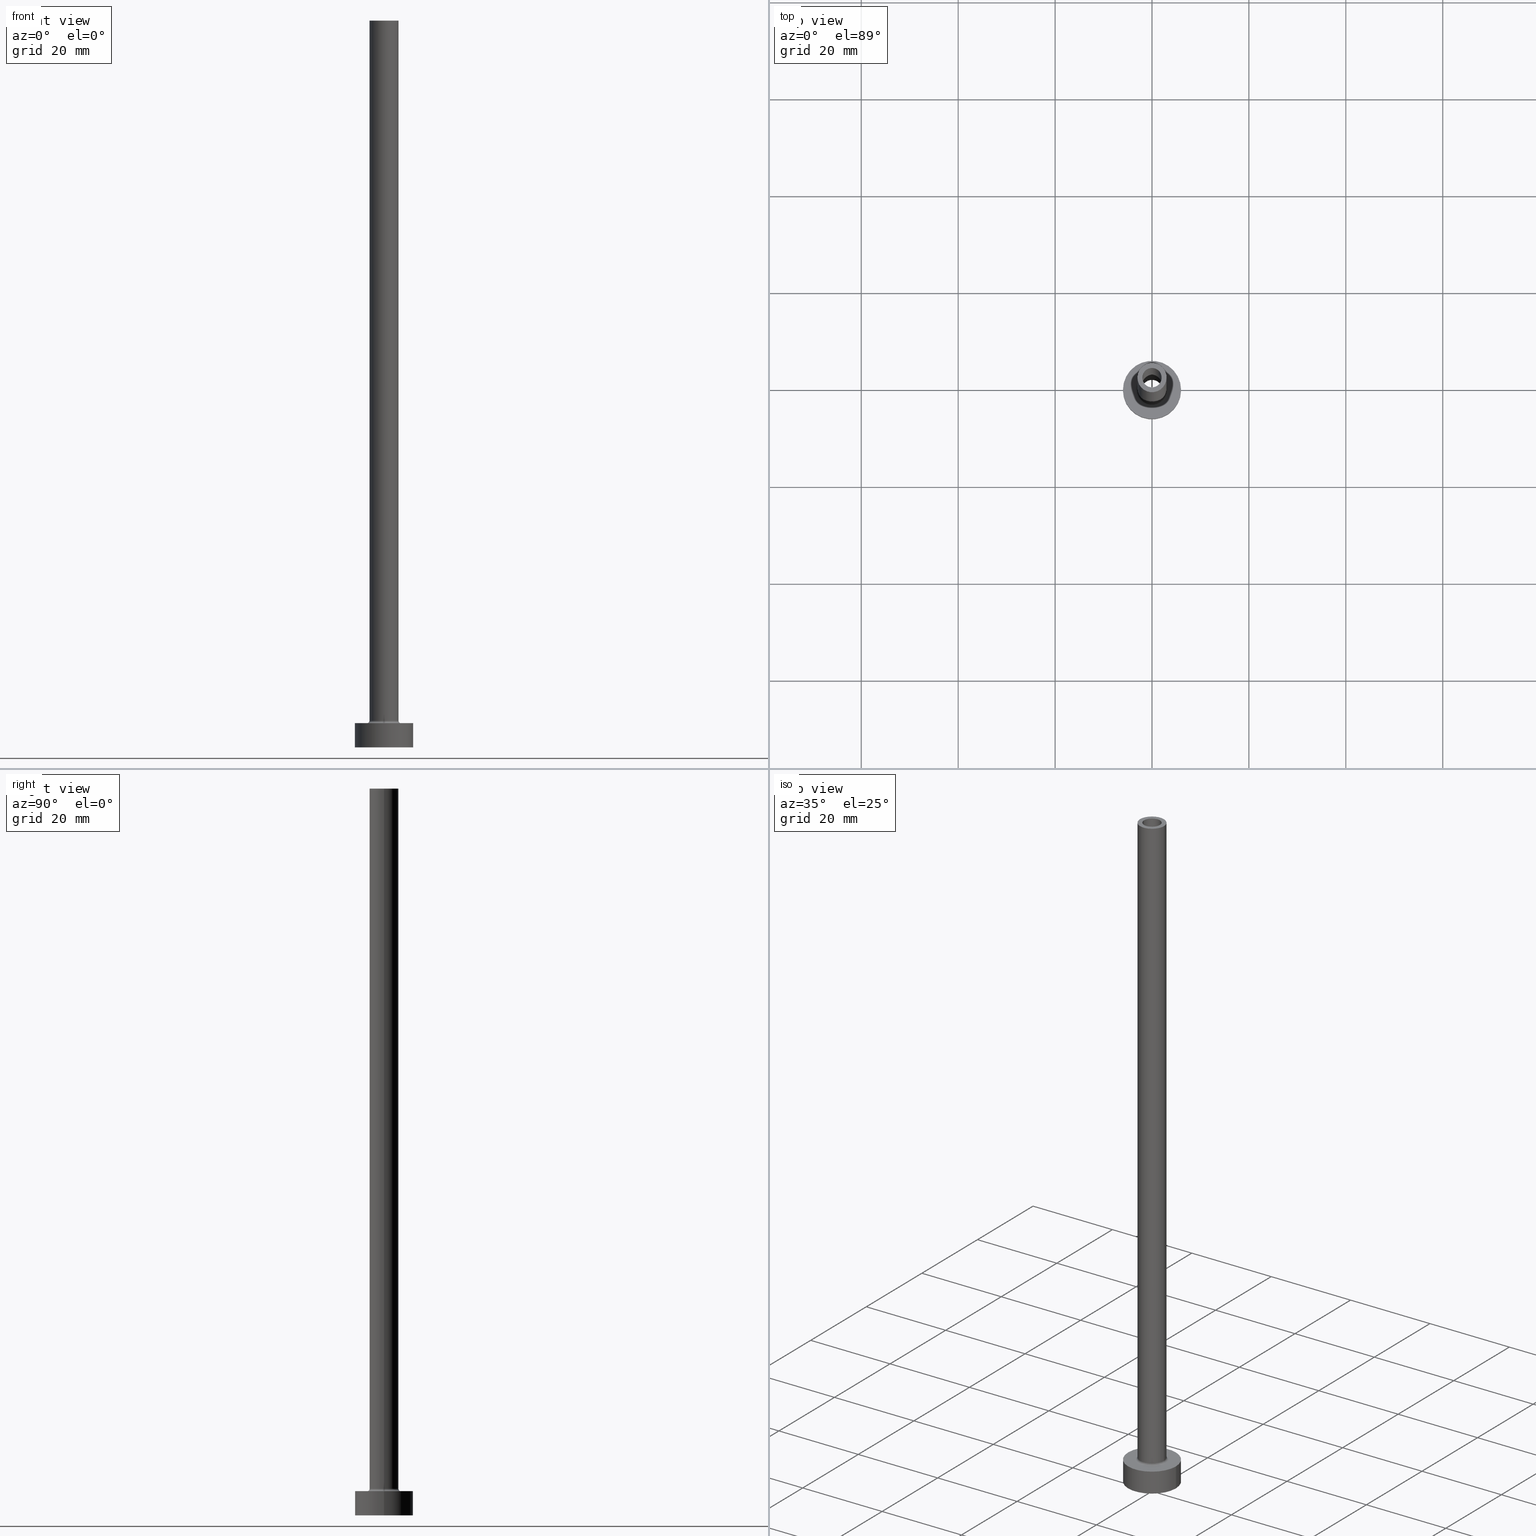
[diagram: canonical four-view strip — front | top / right | iso, engineering-drawing reading convention]
A machine part, canonical four-view strip (front | top / right | iso — engineering-drawing reading convention). The complete STEP part file that produces these views, byte-faithful:
ISO-10303-21;
HEADER;
FILE_DESCRIPTION (( 'STEP AP203' ),
    '1' );
FILE_NAME ('9be3.STEP',
    '2023-02-13T17:46:18',
    ( '' ),
    ( '' ),
    'SwSTEP 2.0',
    'SolidWorks 2019',
    '' );
FILE_SCHEMA (( 'CONFIG_CONTROL_DESIGN' ));
ENDSEC;

DATA;
#1 = COORDINATED_UNIVERSAL_TIME_OFFSET ( 1, 0, .AHEAD. ) ;
#2 = AXIS2_PLACEMENT_3D ( 'NONE', #213, #331, #76 ) ;
#3 = DIRECTION ( 'NONE',  ( 1.224646799147353207E-16, 1.000000000000000000, -0.000000000000000000 ) ) ;
#4 = FACE_OUTER_BOUND ( 'NONE', #336, .T. ) ;
#5 = ADVANCED_BREP_SHAPE_REPRESENTATION ( '9be3', ( #211, #359 ), #82 ) ;
#6 = PERSON_AND_ORGANIZATION_ROLE ( 'design_supplier' ) ;
#7 = ORGANIZATION ( 'NEUR�EN�', 'NEUR�EN�', '' ) ;
#8 = VECTOR ( 'NONE', #300, 1000.000000000000000 ) ;
#9 = DIRECTION ( 'NONE',  ( 0.000000000000000000, 0.000000000000000000, 1.000000000000000000 ) ) ;
#10 = PERSON_AND_ORGANIZATION ( #111, #7 ) ;
#11 = CARTESIAN_POINT ( 'NONE',  ( 0.000000000000000000, 0.000000000000000000, 150.0000000000000000 ) ) ;
#12 = CARTESIAN_POINT ( 'NONE',  ( 0.000000000000000000, 0.000000000000000000, 5.000000000000000000 ) ) ;
#13 = DIRECTION ( 'NONE',  ( 1.000000000000000000, 0.000000000000000000, -0.000000000000000000 ) ) ;
#14 = CALENDAR_DATE ( 2023, 13, 2 ) ;
#15 = CARTESIAN_POINT ( 'NONE',  ( 0.000000000000000000, 0.000000000000000000, 150.0000000000000000 ) ) ;
#16 = DIRECTION ( 'NONE',  ( 1.000000000000000000, 0.000000000000000000, 0.000000000000000000 ) ) ;
#17 = ORIENTED_EDGE ( 'NONE', *, *, #19, .T. ) ;
#18 = CARTESIAN_POINT ( 'NONE',  ( -6.000000000000000888, 0.000000000000000000, 5.000000000000000000 ) ) ;
#19 = EDGE_CURVE ( 'NONE', #90, #409, #284, .T. ) ;
#20 = ORIENTED_EDGE ( 'NONE', *, *, #281, .F. ) ;
#21 = CARTESIAN_POINT ( 'NONE',  ( -2.149999999999999911, 0.000000000000000000, 105.0000000000000000 ) ) ;
#22 = VECTOR ( 'NONE', #170, 1000.000000000000000 ) ;
#23 = AXIS2_PLACEMENT_3D ( 'NONE', #424, #459, #227 ) ;
#24 = ORIENTED_EDGE ( 'NONE', *, *, #394, .F. ) ;
#25 = ORIENTED_EDGE ( 'NONE', *, *, #188, .T. ) ;
#26 = EDGE_CURVE ( 'NONE', #354, #346, #42, .T. ) ;
#27 = DIRECTION ( 'NONE',  ( 0.000000000000000000, 0.000000000000000000, 1.000000000000000000 ) ) ;
#28 = ORIENTED_EDGE ( 'NONE', *, *, #353, .F. ) ;
#29 = CARTESIAN_POINT ( 'NONE',  ( 0.000000000000000000, 0.000000000000000000, 150.0000000000000000 ) ) ;
#30 = CIRCLE ( 'NONE', #262, 2.000000000000000000 ) ;
#31 =( NAMED_UNIT ( * ) PLANE_ANGLE_UNIT ( ) SI_UNIT ( $, .RADIAN. ) );
#32 = DIRECTION ( 'NONE',  ( 0.000000000000000000, 0.000000000000000000, -1.000000000000000000 ) ) ;
#33 = DIRECTION ( 'NONE',  ( 1.000000000000000000, 0.000000000000000000, 0.000000000000000000 ) ) ;
#34 = CALENDAR_DATE ( 2023, 13, 2 ) ;
#35 =( LENGTH_UNIT ( ) NAMED_UNIT ( * ) SI_UNIT ( .MILLI., .METRE. ) );
#36 = AXIS2_PLACEMENT_3D ( 'NONE', #393, #258, #327 ) ;
#37 = CARTESIAN_POINT ( 'NONE',  ( -3.000000000000000444, 0.000000000000000000, 5.500000000000005329 ) ) ;
#38 = UNCERTAINTY_MEASURE_WITH_UNIT (LENGTH_MEASURE( 1.000000000000000082E-05 ), #35, 'distance_accuracy_value', 'NONE');
#39 = EDGE_CURVE ( 'NONE', #361, #411, #347, .T. ) ;
#40 = DIRECTION ( 'NONE',  ( 0.000000000000000000, 0.000000000000000000, -1.000000000000000000 ) ) ;
#41 = LINE ( 'NONE', #289, #59 ) ;
#42 = CIRCLE ( 'NONE', #112, 6.000000000000000888 ) ;
#43 = CIRCLE ( 'NONE', #23, 3.000000000000000444 ) ;
#44 = PRODUCT_RELATED_PRODUCT_CATEGORY ( 'detail', '', ( #351 ) ) ;
#45 = CYLINDRICAL_SURFACE ( 'NONE', #158, 3.000000000000000444 ) ;
#46 = CALENDAR_DATE ( 2023, 13, 2 ) ;
#47 = CARTESIAN_POINT ( 'NONE',  ( -3.500000000000000444, 4.286263797015737088E-16, 5.000000000000002665 ) ) ;
#48 = EDGE_CURVE ( 'NONE', #411, #361, #137, .T. ) ;
#49 = CIRCLE ( 'NONE', #83, 2.149999999999999911 ) ;
#50 = EDGE_LOOP ( 'NONE', ( #334, #86 ) ) ;
#51 = FACE_BOUND ( 'NONE', #233, .T. ) ;
#52 = ORIENTED_EDGE ( 'NONE', *, *, #68, .T. ) ;
#53 = CARTESIAN_POINT ( 'NONE',  ( -6.000000000000000888, 0.000000000000000000, 0.000000000000000000 ) ) ;
#54 = CARTESIAN_POINT ( 'NONE',  ( 0.000000000000000000, 0.000000000000000000, 111.0811183182043180 ) ) ;
#55 = ORIENTED_EDGE ( 'NONE', *, *, #26, .F. ) ;
#56 = DIRECTION ( 'NONE',  ( 0.000000000000000000, 0.000000000000000000, 1.000000000000000000 ) ) ;
#57 = VERTEX_POINT ( 'NONE', #37 ) ;
#58 = CC_DESIGN_SECURITY_CLASSIFICATION ( #389, ( #163 ) ) ;
#59 = VECTOR ( 'NONE', #255, 1000.000000000000000 ) ;
#60 = CARTESIAN_POINT ( 'NONE',  ( 6.000000000000000888, 7.347880794884120722E-16, 0.000000000000000000 ) ) ;
#61 = DIRECTION ( 'NONE',  ( 0.000000000000000000, 0.000000000000000000, 1.000000000000000000 ) ) ;
#62 = DIRECTION ( 'NONE',  ( 0.000000000000000000, 0.000000000000000000, 1.000000000000000000 ) ) ;
#63 = CYLINDRICAL_SURFACE ( 'NONE', #400, 2.149999999999999911 ) ;
#64 = LINE ( 'NONE', #318, #169 ) ;
#65 = PLANE ( 'NONE',  #278 ) ;
#66 = APPROVAL_PERSON_ORGANIZATION ( #273, #116, #316 ) ;
#67 = AXIS2_PLACEMENT_3D ( 'NONE', #70, #134, #418 ) ;
#68 = EDGE_CURVE ( 'NONE', #57, #315, #375, .T. ) ;
#69 = DIRECTION ( 'NONE',  ( -0.000000000000000000, -0.000000000000000000, -1.000000000000000000 ) ) ;
#70 = CARTESIAN_POINT ( 'NONE',  ( 0.000000000000000000, 0.000000000000000000, 150.0000000000000000 ) ) ;
#71 = CYLINDRICAL_SURFACE ( 'NONE', #406, 6.000000000000000888 ) ;
#72 = DATE_AND_TIME ( #14, #447 ) ;
#73 = EDGE_CURVE ( 'NONE', #294, #131, #30, .T. ) ;
#74 = ORIENTED_EDGE ( 'NONE', *, *, #39, .T. ) ;
#75 = APPROVAL_DATE_TIME ( #293, #269 ) ;
#76 = DIRECTION ( 'NONE',  ( -1.000000000000000000, 0.000000000000000000, 0.000000000000000000 ) ) ;
#77 = PERSON_AND_ORGANIZATION_ROLE ( 'creator' ) ;
#78 = EDGE_LOOP ( 'NONE', ( #454, #357 ) ) ;
#79 = CARTESIAN_POINT ( 'NONE',  ( 0.000000000000000000, 0.000000000000000000, 5.000000000000000000 ) ) ;
#80 = DIRECTION ( 'NONE',  ( 0.000000000000000000, 0.000000000000000000, 1.000000000000000000 ) ) ;
#81 = DIRECTION ( 'NONE',  ( 1.000000000000000000, 0.000000000000000000, 0.000000000000000000 ) ) ;
#82 =( GEOMETRIC_REPRESENTATION_CONTEXT ( 3 ) GLOBAL_UNCERTAINTY_ASSIGNED_CONTEXT ( ( #38 ) ) GLOBAL_UNIT_ASSIGNED_CONTEXT ( ( #35, #31, #172 ) ) REPRESENTATION_CONTEXT ( 'NONE', 'WORKASPACE' ) );
#83 = AXIS2_PLACEMENT_3D ( 'NONE', #217, #27, #115 ) ;
#84 = TOROIDAL_SURFACE ( 'NONE', #383, 3.500000000000000444, 0.5000000000000000000 ) ;
#85 = ORIENTED_EDGE ( 'NONE', *, *, #88, .T. ) ;
#86 = ORIENTED_EDGE ( 'NONE', *, *, #326, .T. ) ;
#87 = CARTESIAN_POINT ( 'NONE',  ( -3.000000000000000444, 0.000000000000000000, 150.0000000000000000 ) ) ;
#88 = EDGE_CURVE ( 'NONE', #157, #361, #102, .T. ) ;
#89 = CARTESIAN_POINT ( 'NONE',  ( -2.149999999999999911, 0.000000000000000000, 111.0811183182043180 ) ) ;
#90 = VERTEX_POINT ( 'NONE', #53 ) ;
#91 = CC_DESIGN_PERSON_AND_ORGANIZATION_ASSIGNMENT ( #441, #77, ( #163 ) ) ;
#92 = DIRECTION ( 'NONE',  ( 1.000000000000000000, 0.000000000000000000, 0.000000000000000000 ) ) ;
#93 = AXIS2_PLACEMENT_3D ( 'NONE', #249, #80, #365 ) ;
#94 = VERTEX_POINT ( 'NONE', #372 ) ;
#95 = DIRECTION ( 'NONE',  ( 0.000000000000000000, -1.000000000000000000, 0.000000000000000000 ) ) ;
#96 = EDGE_LOOP ( 'NONE', ( #198, #194 ) ) ;
#97 = DIRECTION ( 'NONE',  ( -0.000000000000000000, -0.000000000000000000, -1.000000000000000000 ) ) ;
#98 = DIRECTION ( 'NONE',  ( 0.000000000000000000, 0.000000000000000000, -1.000000000000000000 ) ) ;
#99 = EDGE_LOOP ( 'NONE', ( #287, #225 ) ) ;
#100 = APPROVAL_DATE_TIME ( #421, #116 ) ;
#101 = EDGE_CURVE ( 'NONE', #131, #294, #304, .T. ) ;
#102 = LINE ( 'NONE', #391, #448 ) ;
#103 = DIRECTION ( 'NONE',  ( 1.000000000000000000, 0.000000000000000000, -0.000000000000000000 ) ) ;
#104 = AXIS2_PLACEMENT_3D ( 'NONE', #54, #410, #156 ) ;
#105 = CIRCLE ( 'NONE', #413, 2.000000000000000000 ) ;
#106 = DIRECTION ( 'NONE',  ( 1.000000000000000000, 0.000000000000000000, 0.000000000000000000 ) ) ;
#107 = COORDINATED_UNIVERSAL_TIME_OFFSET ( 1, 0, .AHEAD. ) ;
#108 = ORIENTED_EDGE ( 'NONE', *, *, #423, .T. ) ;
#109 = ADVANCED_FACE ( 'NONE', ( #117 ), #399, .F. ) ;
#110 = CALENDAR_DATE ( 2023, 13, 2 ) ;
#111 = PERSON ( 'NEUR�EN�', 'NEUR�EN�', 'NEUR�EN�', ('NEUR�EN�'), ('NEUR�EN�'), ('NEUR�EN�') ) ;
#112 = AXIS2_PLACEMENT_3D ( 'NONE', #12, #146, #173 ) ;
#113 = SHAPE_DEFINITION_REPRESENTATION ( #275, #5 ) ;
#114 = DIRECTION ( 'NONE',  ( 0.000000000000000000, 0.000000000000000000, 1.000000000000000000 ) ) ;
#115 = DIRECTION ( 'NONE',  ( 1.000000000000000000, 0.000000000000000000, 0.000000000000000000 ) ) ;
#116 = APPROVAL ( #388, 'NEUR�EN�' ) ;
#117 = FACE_OUTER_BOUND ( 'NONE', #307, .T. ) ;
#118 = CYLINDRICAL_SURFACE ( 'NONE', #367, 3.000000000000000444 ) ;
#119 = VERTEX_POINT ( 'NONE', #267 ) ;
#120 = DIRECTION ( 'NONE',  ( 0.000000000000000000, 0.000000000000000000, 1.000000000000000000 ) ) ;
#121 = CIRCLE ( 'NONE', #210, 2.000000000000000000 ) ;
#122 = DIRECTION ( 'NONE',  ( 0.000000000000000000, 0.000000000000000000, 1.000000000000000000 ) ) ;
#123 = CIRCLE ( 'NONE', #231, 6.000000000000000888 ) ;
#124 = ORIENTED_EDGE ( 'NONE', *, *, #326, .F. ) ;
#125 = LINE ( 'NONE', #89, #8 ) ;
#126 = ORIENTED_EDGE ( 'NONE', *, *, #101, .T. ) ;
#127 = DIRECTION ( 'NONE',  ( 0.000000000000000000, 0.000000000000000000, 1.000000000000000000 ) ) ;
#128 = ORIENTED_EDGE ( 'NONE', *, *, #343, .T. ) ;
#129 = CC_DESIGN_APPROVAL ( #168, ( #163 ) ) ;
#130 = VECTOR ( 'NONE', #344, 1000.000000000000000 ) ;
#131 = VERTEX_POINT ( 'NONE', #339 ) ;
#132 = DIRECTION ( 'NONE',  ( 0.000000000000000000, 0.000000000000000000, 1.000000000000000000 ) ) ;
#133 = MECHANICAL_CONTEXT ( 'NONE', #228, 'mechanical' ) ;
#134 = DIRECTION ( 'NONE',  ( 0.000000000000000000, 0.000000000000000000, -1.000000000000000000 ) ) ;
#135 = DIRECTION ( 'NONE',  ( 0.000000000000000000, 0.000000000000000000, 1.000000000000000000 ) ) ;
#136 = EDGE_CURVE ( 'NONE', #157, #342, #49, .T. ) ;
#137 = CIRCLE ( 'NONE', #313, 2.149999999999999911 ) ;
#138 = ADVANCED_FACE ( 'NONE', ( #257 ), #433, .F. ) ;
#139 = DIRECTION ( 'NONE',  ( -1.000000000000000000, 1.224646799147354440E-16, 0.000000000000000000 ) ) ;
#140 = CARTESIAN_POINT ( 'NONE',  ( 0.000000000000000000, 0.000000000000000000, 5.000000000000000000 ) ) ;
#141 = APPLICATION_CONTEXT ( 'configuration controlled 3d designs of mechanical parts and assemblies' ) ;
#142 = CIRCLE ( 'NONE', #230, 3.000000000000000444 ) ;
#143 = CC_DESIGN_DATE_AND_TIME_ASSIGNMENT ( #212, #206, ( #389 ) ) ;
#144 = ORIENTED_EDGE ( 'NONE', *, *, #88, .F. ) ;
#145 = CARTESIAN_POINT ( 'NONE',  ( 0.000000000000000000, 0.000000000000000000, 5.000000000000000000 ) ) ;
#146 = DIRECTION ( 'NONE',  ( 0.000000000000000000, 0.000000000000000000, 1.000000000000000000 ) ) ;
#147 = COORDINATED_UNIVERSAL_TIME_OFFSET ( 1, 0, .AHEAD. ) ;
#148 = CIRCLE ( 'NONE', #430, 6.000000000000000888 ) ;
#149 = EDGE_CURVE ( 'NONE', #261, #119, #390, .T. ) ;
#150 = ORIENTED_EDGE ( 'NONE', *, *, #343, .F. ) ;
#151 = CARTESIAN_POINT ( 'NONE',  ( 0.000000000000000000, 0.000000000000000000, 0.000000000000000000 ) ) ;
#152 = CARTESIAN_POINT ( 'NONE',  ( 2.149999999999999911, 2.632990618166809235E-16, 105.0000000000000000 ) ) ;
#153 = ORIENTED_EDGE ( 'NONE', *, *, #136, .T. ) ;
#154 = CARTESIAN_POINT ( 'NONE',  ( 6.000000000000000888, 7.347880794884120722E-16, 5.000000000000000000 ) ) ;
#155 = DIRECTION ( 'NONE',  ( 0.000000000000000000, 0.000000000000000000, 1.000000000000000000 ) ) ;
#156 = DIRECTION ( 'NONE',  ( -1.000000000000000000, 0.000000000000000000, 0.000000000000000000 ) ) ;
#157 = VERTEX_POINT ( 'NONE', #152 ) ;
#158 = AXIS2_PLACEMENT_3D ( 'NONE', #11, #311, #305 ) ;
#159 = CC_DESIGN_PERSON_AND_ORGANIZATION_ASSIGNMENT ( #237, #242, ( #351 ) ) ;
#160 = VERTEX_POINT ( 'NONE', #244 ) ;
#161 = DIRECTION ( 'NONE',  ( 1.000000000000000000, 0.000000000000000000, 0.000000000000000000 ) ) ;
#162 = ORIENTED_EDGE ( 'NONE', *, *, #39, .F. ) ;
#163 = PRODUCT_DEFINITION_FORMATION_WITH_SPECIFIED_SOURCE ( 'LIBOVOLN�', '', #351, .NOT_KNOWN. ) ;
#164 = AXIS2_PLACEMENT_3D ( 'NONE', #286, #404, #432 ) ;
#165 = FACE_OUTER_BOUND ( 'NONE', #379, .T. ) ;
#166 = CYLINDRICAL_SURFACE ( 'NONE', #241, 6.000000000000000888 ) ;
#167 = ORIENTED_EDGE ( 'NONE', *, *, #398, .F. ) ;
#168 = APPROVAL ( #328, 'NEUR�EN�' ) ;
#169 = VECTOR ( 'NONE', #32, 1000.000000000000000 ) ;
#170 = DIRECTION ( 'NONE',  ( -0.000000000000000000, -0.000000000000000000, -1.000000000000000000 ) ) ;
#171 = AXIS2_PLACEMENT_3D ( 'NONE', #401, #9, #81 ) ;
#172 =( NAMED_UNIT ( * ) SI_UNIT ( $, .STERADIAN. ) SOLID_ANGLE_UNIT ( ) );
#173 = DIRECTION ( 'NONE',  ( 1.000000000000000000, 0.000000000000000000, 0.000000000000000000 ) ) ;
#174 = CARTESIAN_POINT ( 'NONE',  ( 2.000000000000000000, 2.449293598294705921E-16, 105.0000000000000000 ) ) ;
#175 = AXIS2_PLACEMENT_3D ( 'NONE', #200, #3, #139 ) ;
#176 = DATE_TIME_ROLE ( 'creation_date' ) ;
#177 = DIRECTION ( 'NONE',  ( -0.000000000000000000, -0.000000000000000000, -1.000000000000000000 ) ) ;
#178 = PLANE ( 'NONE',  #36 ) ;
#179 = ADVANCED_FACE ( 'NONE', ( #395 ), #378, .F. ) ;
#180 = PERSON_AND_ORGANIZATION ( #111, #7 ) ;
#181 = EDGE_LOOP ( 'NONE', ( #144, #153, #298, #445 ) ) ;
#182 = ORIENTED_EDGE ( 'NONE', *, *, #220, .F. ) ;
#183 = DIRECTION ( 'NONE',  ( 0.000000000000000000, 0.000000000000000000, 1.000000000000000000 ) ) ;
#184 = CARTESIAN_POINT ( 'NONE',  ( 0.000000000000000000, 0.000000000000000000, 105.0000000000000000 ) ) ;
#185 = EDGE_CURVE ( 'NONE', #342, #411, #125, .T. ) ;
#186 = ORIENTED_EDGE ( 'NONE', *, *, #353, .T. ) ;
#187 = PLANE ( 'NONE',  #240 ) ;
#188 = EDGE_CURVE ( 'NONE', #271, #57, #142, .T. ) ;
#189 = ORIENTED_EDGE ( 'NONE', *, *, #48, .F. ) ;
#190 = DIRECTION ( 'NONE',  ( 1.000000000000000000, 0.000000000000000000, -0.000000000000000000 ) ) ;
#191 = AXIS2_PLACEMENT_3D ( 'NONE', #453, #122, #263 ) ;
#192 = CARTESIAN_POINT ( 'NONE',  ( 0.000000000000000000, 0.000000000000000000, 105.0000000000000000 ) ) ;
#193 = CARTESIAN_POINT ( 'NONE',  ( 0.000000000000000000, 0.000000000000000000, 150.0000000000000000 ) ) ;
#194 = ORIENTED_EDGE ( 'NONE', *, *, #136, .F. ) ;
#195 = DIRECTION ( 'NONE',  ( -0.000000000000000000, -0.000000000000000000, -1.000000000000000000 ) ) ;
#196 = ORIENTED_EDGE ( 'NONE', *, *, #281, .T. ) ;
#197 = DIRECTION ( 'NONE',  ( -1.000000000000000000, 0.000000000000000000, 0.000000000000000000 ) ) ;
#198 = ORIENTED_EDGE ( 'NONE', *, *, #250, .F. ) ;
#199 = AXIS2_PLACEMENT_3D ( 'NONE', #402, #364, #335 ) ;
#200 = CARTESIAN_POINT ( 'NONE',  ( -3.500000000000000444, 4.286263797015737088E-16, 5.500000000000005329 ) ) ;
#201 = CARTESIAN_POINT ( 'NONE',  ( -2.149999999999999911, 0.000000000000000000, 0.000000000000000000 ) ) ;
#202 = LINE ( 'NONE', #280, #222 ) ;
#203 = CARTESIAN_POINT ( 'NONE',  ( 0.000000000000000000, 0.000000000000000000, 5.500000000000005329 ) ) ;
#204 = LOCAL_TIME ( 18, 46, 18.00000000000000000, #1 ) ;
#205 = FACE_OUTER_BOUND ( 'NONE', #264, .T. ) ;
#206 = DATE_TIME_ROLE ( 'classification_date' ) ;
#207 = CARTESIAN_POINT ( 'NONE',  ( -3.000000000000000444, 0.000000000000000000, 150.0000000000000000 ) ) ;
#208 = SECURITY_CLASSIFICATION_LEVEL ( 'unclassified' ) ;
#209 = ADVANCED_FACE ( 'NONE', ( #444 ), #118, .T. ) ;
#210 = AXIS2_PLACEMENT_3D ( 'NONE', #15, #127, #303 ) ;
#211 = MANIFOLD_SOLID_BREP ( 'Odebrat vysunut�m4', #382 ) ;
#212 = DATE_AND_TIME ( #110, #229 ) ;
#213 = CARTESIAN_POINT ( 'NONE',  ( 0.000000000000000000, 0.000000000000000000, 150.0000000000000000 ) ) ;
#214 = CIRCLE ( 'NONE', #199, 3.500000000000000444 ) ;
#215 = EDGE_CURVE ( 'NONE', #271, #94, #438, .T. ) ;
#216 = ORIENTED_EDGE ( 'NONE', *, *, #215, .F. ) ;
#217 = CARTESIAN_POINT ( 'NONE',  ( 0.000000000000000000, 0.000000000000000000, 105.0000000000000000 ) ) ;
#218 = DIRECTION ( 'NONE',  ( 1.000000000000000000, 0.000000000000000000, 0.000000000000000000 ) ) ;
#219 = EDGE_LOOP ( 'NONE', ( #426, #296, #456, #124 ) ) ;
#220 = EDGE_CURVE ( 'NONE', #119, #271, #202, .T. ) ;
#221 = ORIENTED_EDGE ( 'NONE', *, *, #101, .F. ) ;
#222 = VECTOR ( 'NONE', #69, 1000.000000000000000 ) ;
#223 = EDGE_LOOP ( 'NONE', ( #24, #150 ) ) ;
#224 = DIRECTION ( 'NONE',  ( 0.000000000000000000, 0.000000000000000000, -1.000000000000000000 ) ) ;
#225 = ORIENTED_EDGE ( 'NONE', *, *, #423, .F. ) ;
#226 = DIRECTION ( 'NONE',  ( -1.000000000000000000, 0.000000000000000000, 0.000000000000000000 ) ) ;
#227 = DIRECTION ( 'NONE',  ( 1.000000000000000000, 0.000000000000000000, 0.000000000000000000 ) ) ;
#228 = APPLICATION_CONTEXT ( 'configuration controlled 3d designs of mechanical parts and assemblies' ) ;
#229 = LOCAL_TIME ( 18, 46, 18.00000000000000000, #147 ) ;
#230 = AXIS2_PLACEMENT_3D ( 'NONE', #306, #56, #218 ) ;
#231 = AXIS2_PLACEMENT_3D ( 'NONE', #314, #135, #385 ) ;
#232 = LINE ( 'NONE', #458, #130 ) ;
#233 = EDGE_LOOP ( 'NONE', ( #126, #386 ) ) ;
#234 = PERSON_AND_ORGANIZATION ( #111, #7 ) ;
#235 = VERTEX_POINT ( 'NONE', #442 ) ;
#236 = ADVANCED_FACE ( 'NONE', ( #243, #283 ), #178, .T. ) ;
#237 = PERSON_AND_ORGANIZATION ( #111, #7 ) ;
#238 = LOCAL_TIME ( 18, 46, 18.00000000000000000, #285 ) ;
#239 = FACE_OUTER_BOUND ( 'NONE', #268, .T. ) ;
#240 = AXIS2_PLACEMENT_3D ( 'NONE', #184, #259, #13 ) ;
#241 = AXIS2_PLACEMENT_3D ( 'NONE', #272, #97, #226 ) ;
#242 = PERSON_AND_ORGANIZATION_ROLE ( 'design_owner' ) ;
#243 = FACE_BOUND ( 'NONE', #223, .T. ) ;
#244 = CARTESIAN_POINT ( 'NONE',  ( 2.000000000000000000, 2.449293598294705921E-16, 150.0000000000000000 ) ) ;
#245 = PERSON_AND_ORGANIZATION ( #111, #7 ) ;
#246 = ORIENTED_EDGE ( 'NONE', *, *, #398, .T. ) ;
#247 = EDGE_CURVE ( 'NONE', #119, #261, #292, .T. ) ;
#248 = ORIENTED_EDGE ( 'NONE', *, *, #452, .T. ) ;
#249 = CARTESIAN_POINT ( 'NONE',  ( 0.000000000000000000, 0.000000000000000000, 105.0000000000000000 ) ) ;
#250 = EDGE_CURVE ( 'NONE', #342, #157, #360, .T. ) ;
#251 = AXIS2_PLACEMENT_3D ( 'NONE', #291, #183, #16 ) ;
#252 = PRODUCT_DEFINITION ( 'NEZN�M�', '', #163, #323 ) ;
#253 = APPROVAL_DATE_TIME ( #72, #168 ) ;
#254 = EDGE_LOOP ( 'NONE', ( #330, #85, #74, #451 ) ) ;
#255 = DIRECTION ( 'NONE',  ( -0.000000000000000000, -0.000000000000000000, -1.000000000000000000 ) ) ;
#256 = APPROVAL_ROLE ( '' ) ;
#257 = FACE_OUTER_BOUND ( 'NONE', #449, .T. ) ;
#258 = DIRECTION ( 'NONE',  ( 0.000000000000000000, 0.000000000000000000, 1.000000000000000000 ) ) ;
#259 = DIRECTION ( 'NONE',  ( 0.000000000000000000, 0.000000000000000000, 1.000000000000000000 ) ) ;
#260 = CC_DESIGN_APPROVAL ( #269, ( #389 ) ) ;
#261 = VERTEX_POINT ( 'NONE', #207 ) ;
#262 = AXIS2_PLACEMENT_3D ( 'NONE', #384, #62, #279 ) ;
#263 = DIRECTION ( 'NONE',  ( 1.000000000000000000, 0.000000000000000000, 0.000000000000000000 ) ) ;
#264 = EDGE_LOOP ( 'NONE', ( #28, #290, #196, #17 ) ) ;
#265 = CARTESIAN_POINT ( 'NONE',  ( 3.500000000000000444, 0.000000000000000000, 5.500000000000005329 ) ) ;
#266 = ORIENTED_EDGE ( 'NONE', *, *, #149, .F. ) ;
#267 = CARTESIAN_POINT ( 'NONE',  ( 3.000000000000000444, 3.673940397442060361E-16, 150.0000000000000000 ) ) ;
#268 = EDGE_LOOP ( 'NONE', ( #310, #248, #221, #167 ) ) ;
#269 = APPROVAL ( #358, 'NEUR�EN�' ) ;
#270 = AXIS2_PLACEMENT_3D ( 'NONE', #192, #155, #92 ) ;
#271 = VERTEX_POINT ( 'NONE', #437 ) ;
#272 = CARTESIAN_POINT ( 'NONE',  ( 0.000000000000000000, 0.000000000000000000, 5.000000000000000000 ) ) ;
#273 = PERSON_AND_ORGANIZATION ( #111, #7 ) ;
#274 = DIRECTION ( 'NONE',  ( 0.000000000000000000, 0.000000000000000000, 1.000000000000000000 ) ) ;
#275 = PRODUCT_DEFINITION_SHAPE ( 'NONE', 'NONE',  #252 ) ;
#276 = FACE_OUTER_BOUND ( 'NONE', #181, .T. ) ;
#277 = APPROVAL_PERSON_ORGANIZATION ( #180, #168, #325 ) ;
#278 = AXIS2_PLACEMENT_3D ( 'NONE', #140, #274, #103 ) ;
#279 = DIRECTION ( 'NONE',  ( 1.000000000000000000, 0.000000000000000000, 0.000000000000000000 ) ) ;
#280 = CARTESIAN_POINT ( 'NONE',  ( 3.000000000000000444, 3.673940397442060361E-16, 150.0000000000000000 ) ) ;
#281 = EDGE_CURVE ( 'NONE', #346, #90, #41, .T. ) ;
#282 = CC_DESIGN_PERSON_AND_ORGANIZATION_ASSIGNMENT ( #10, #6, ( #163 ) ) ;
#283 = FACE_OUTER_BOUND ( 'NONE', #78, .T. ) ;
#284 = CIRCLE ( 'NONE', #171, 6.000000000000000888 ) ;
#285 = COORDINATED_UNIVERSAL_TIME_OFFSET ( 1, 0, .AHEAD. ) ;
#286 = CARTESIAN_POINT ( 'NONE',  ( 0.000000000000000000, 0.000000000000000000, 150.0000000000000000 ) ) ;
#287 = ORIENTED_EDGE ( 'NONE', *, *, #19, .F. ) ;
#288 = PERSON_AND_ORGANIZATION ( #111, #7 ) ;
#289 = CARTESIAN_POINT ( 'NONE',  ( -6.000000000000000888, 0.000000000000000000, 5.000000000000000000 ) ) ;
#290 = ORIENTED_EDGE ( 'NONE', *, *, #317, .F. ) ;
#291 = CARTESIAN_POINT ( 'NONE',  ( 0.000000000000000000, 0.000000000000000000, 150.0000000000000000 ) ) ;
#292 = CIRCLE ( 'NONE', #164, 3.000000000000000444 ) ;
#293 = DATE_AND_TIME ( #46, #319 ) ;
#294 = VERTEX_POINT ( 'NONE', #174 ) ;
#295 = PERSON_AND_ORGANIZATION_ROLE ( 'creator' ) ;
#296 = ORIENTED_EDGE ( 'NONE', *, *, #188, .F. ) ;
#297 = LINE ( 'NONE', #154, #22 ) ;
#298 = ORIENTED_EDGE ( 'NONE', *, *, #185, .T. ) ;
#299 = FACE_OUTER_BOUND ( 'NONE', #96, .T. ) ;
#300 = DIRECTION ( 'NONE',  ( 0.000000000000000000, 0.000000000000000000, -1.000000000000000000 ) ) ;
#301 = ADVANCED_FACE ( 'NONE', ( #434 ), #45, .T. ) ;
#302 = ORIENTED_EDGE ( 'NONE', *, *, #73, .F. ) ;
#303 = DIRECTION ( 'NONE',  ( 1.000000000000000000, 0.000000000000000000, 0.000000000000000000 ) ) ;
#304 = CIRCLE ( 'NONE', #270, 2.000000000000000000 ) ;
#305 = DIRECTION ( 'NONE',  ( -1.000000000000000000, 0.000000000000000000, 0.000000000000000000 ) ) ;
#306 = CARTESIAN_POINT ( 'NONE',  ( 0.000000000000000000, 0.000000000000000000, 5.500000000000005329 ) ) ;
#307 = EDGE_LOOP ( 'NONE', ( #312, #52, #461, #216 ) ) ;
#308 = DIRECTION ( 'NONE',  ( -0.000000000000000000, -0.000000000000000000, -1.000000000000000000 ) ) ;
#309 = EDGE_CURVE ( 'NONE', #94, #315, #355, .T. ) ;
#310 = ORIENTED_EDGE ( 'NONE', *, *, #394, .T. ) ;
#311 = DIRECTION ( 'NONE',  ( -0.000000000000000000, -0.000000000000000000, -1.000000000000000000 ) ) ;
#312 = ORIENTED_EDGE ( 'NONE', *, *, #439, .F. ) ;
#313 = AXIS2_PLACEMENT_3D ( 'NONE', #376, #195, #340 ) ;
#314 = CARTESIAN_POINT ( 'NONE',  ( 0.000000000000000000, 0.000000000000000000, 0.000000000000000000 ) ) ;
#315 = VERTEX_POINT ( 'NONE', #47 ) ;
#316 = APPROVAL_ROLE ( '' ) ;
#317 = EDGE_CURVE ( 'NONE', #346, #354, #148, .T. ) ;
#318 = CARTESIAN_POINT ( 'NONE',  ( 2.000000000000000000, 2.449293598294705921E-16, 150.0000000000000000 ) ) ;
#319 = LOCAL_TIME ( 18, 46, 18.00000000000000000, #362 ) ;
#320 = AXIS2_PLACEMENT_3D ( 'NONE', #324, #431, #106 ) ;
#321 = FACE_BOUND ( 'NONE', #50, .T. ) ;
#322 = ADVANCED_FACE ( 'NONE', ( #51, #299 ), #187, .F. ) ;
#323 = DESIGN_CONTEXT ( 'detailed design', #141, 'design' ) ;
#324 = CARTESIAN_POINT ( 'NONE',  ( 0.000000000000000000, 0.000000000000000000, 0.000000000000000000 ) ) ;
#325 = APPROVAL_ROLE ( '' ) ;
#326 = EDGE_CURVE ( 'NONE', #315, #94, #214, .T. ) ;
#327 = DIRECTION ( 'NONE',  ( 1.000000000000000000, 0.000000000000000000, -0.000000000000000000 ) ) ;
#328 = APPROVAL_STATUS ( 'not_yet_approved' ) ;
#329 = EDGE_LOOP ( 'NONE', ( #368, #436, #25, #373 ) ) ;
#330 = ORIENTED_EDGE ( 'NONE', *, *, #250, .T. ) ;
#331 = DIRECTION ( 'NONE',  ( 0.000000000000000000, 0.000000000000000000, -1.000000000000000000 ) ) ;
#332 = CC_DESIGN_APPROVAL ( #116, ( #252 ) ) ;
#333 = LINE ( 'NONE', #87, #412 ) ;
#334 = ORIENTED_EDGE ( 'NONE', *, *, #309, .T. ) ;
#335 = DIRECTION ( 'NONE',  ( 1.000000000000000000, 0.000000000000000000, 0.000000000000000000 ) ) ;
#336 = EDGE_LOOP ( 'NONE', ( #420, #416 ) ) ;
#337 = CARTESIAN_POINT ( 'NONE',  ( 0.000000000000000000, 0.000000000000000000, 5.000000000000000000 ) ) ;
#338 = EDGE_CURVE ( 'NONE', #261, #57, #333, .T. ) ;
#339 = CARTESIAN_POINT ( 'NONE',  ( -2.000000000000000000, 0.000000000000000000, 105.0000000000000000 ) ) ;
#340 = DIRECTION ( 'NONE',  ( 1.000000000000000000, 0.000000000000000000, 0.000000000000000000 ) ) ;
#341 = DIRECTION ( 'NONE',  ( -1.000000000000000000, 0.000000000000000000, 0.000000000000000000 ) ) ;
#342 = VERTEX_POINT ( 'NONE', #21 ) ;
#343 = EDGE_CURVE ( 'NONE', #160, #235, #121, .T. ) ;
#344 = DIRECTION ( 'NONE',  ( 0.000000000000000000, 0.000000000000000000, -1.000000000000000000 ) ) ;
#345 = ADVANCED_FACE ( 'NONE', ( #370, #450 ), #443, .F. ) ;
#346 = VERTEX_POINT ( 'NONE', #18 ) ;
#347 = CIRCLE ( 'NONE', #320, 2.149999999999999911 ) ;
#348 = AXIS2_PLACEMENT_3D ( 'NONE', #151, #120, #190 ) ;
#349 = CYLINDRICAL_SURFACE ( 'NONE', #67, 2.000000000000000000 ) ;
#350 = DIRECTION ( 'NONE',  ( -0.000000000000000000, -0.000000000000000000, -1.000000000000000000 ) ) ;
#351 = PRODUCT ( '9be3', '9be3', '', ( #133 ) ) ;
#352 = APPLICATION_PROTOCOL_DEFINITION ( 'international standard', 'config_control_design', 1994, #141 ) ;
#353 = EDGE_CURVE ( 'NONE', #354, #409, #297, .T. ) ;
#354 = VERTEX_POINT ( 'NONE', #428 ) ;
#355 = CIRCLE ( 'NONE', #422, 3.500000000000000444 ) ;
#356 = ADVANCED_FACE ( 'NONE', ( #321, #4 ), #65, .T. ) ;
#357 = ORIENTED_EDGE ( 'NONE', *, *, #247, .T. ) ;
#358 = APPROVAL_STATUS ( 'not_yet_approved' ) ;
#359 = AXIS2_PLACEMENT_3D ( 'NONE', #381, #61, #427 ) ;
#360 = CIRCLE ( 'NONE', #93, 2.149999999999999911 ) ;
#361 = VERTEX_POINT ( 'NONE', #425 ) ;
#362 = COORDINATED_UNIVERSAL_TIME_OFFSET ( 1, 0, .AHEAD. ) ;
#363 = EDGE_LOOP ( 'NONE', ( #182, #266, #397, #369 ) ) ;
#364 = DIRECTION ( 'NONE',  ( -0.000000000000000000, -0.000000000000000000, -1.000000000000000000 ) ) ;
#365 = DIRECTION ( 'NONE',  ( 1.000000000000000000, 0.000000000000000000, 0.000000000000000000 ) ) ;
#366 = ADVANCED_FACE ( 'NONE', ( #239 ), #349, .F. ) ;
#367 = AXIS2_PLACEMENT_3D ( 'NONE', #193, #414, #341 ) ;
#368 = ORIENTED_EDGE ( 'NONE', *, *, #247, .F. ) ;
#369 = ORIENTED_EDGE ( 'NONE', *, *, #439, .T. ) ;
#370 = FACE_BOUND ( 'NONE', #407, .T. ) ;
#371 = CC_DESIGN_PERSON_AND_ORGANIZATION_ASSIGNMENT ( #234, #295, ( #252 ) ) ;
#372 = CARTESIAN_POINT ( 'NONE',  ( 3.500000000000000444, 0.000000000000000000, 5.000000000000002665 ) ) ;
#373 = ORIENTED_EDGE ( 'NONE', *, *, #338, .F. ) ;
#374 = DIRECTION ( 'NONE',  ( 1.000000000000000000, 0.000000000000000000, 0.000000000000000000 ) ) ;
#375 = CIRCLE ( 'NONE', #175, 0.4999999999999995559 ) ;
#376 = CARTESIAN_POINT ( 'NONE',  ( 0.000000000000000000, 0.000000000000000000, 0.000000000000000000 ) ) ;
#377 = ORIENTED_EDGE ( 'NONE', *, *, #452, .F. ) ;
#378 = CYLINDRICAL_SURFACE ( 'NONE', #104, 2.149999999999999911 ) ;
#379 = EDGE_LOOP ( 'NONE', ( #55, #186, #108, #20 ) ) ;
#380 = FACE_OUTER_BOUND ( 'NONE', #219, .T. ) ;
#381 = CARTESIAN_POINT ( 'NONE',  ( 0.000000000000000000, 0.000000000000000000, 0.000000000000000000 ) ) ;
#382 = CLOSED_SHELL ( 'NONE', ( #366, #179, #109, #301, #408, #387, #356, #345, #209, #236, #403, #392, #322, #138 ) ) ;
#383 = AXIS2_PLACEMENT_3D ( 'NONE', #203, #132, #33 ) ;
#384 = CARTESIAN_POINT ( 'NONE',  ( 0.000000000000000000, 0.000000000000000000, 105.0000000000000000 ) ) ;
#385 = DIRECTION ( 'NONE',  ( 1.000000000000000000, 0.000000000000000000, 0.000000000000000000 ) ) ;
#386 = ORIENTED_EDGE ( 'NONE', *, *, #73, .T. ) ;
#387 = ADVANCED_FACE ( 'NONE', ( #205 ), #71, .T. ) ;
#388 = APPROVAL_STATUS ( 'not_yet_approved' ) ;
#389 = SECURITY_CLASSIFICATION ( '', '', #208 ) ;
#390 = CIRCLE ( 'NONE', #251, 3.000000000000000444 ) ;
#391 = CARTESIAN_POINT ( 'NONE',  ( 2.149999999999999911, 2.632990618166809235E-16, 111.0811183182043180 ) ) ;
#392 = ADVANCED_FACE ( 'NONE', ( #276 ), #63, .F. ) ;
#393 = CARTESIAN_POINT ( 'NONE',  ( 0.000000000000000000, 0.000000000000000000, 150.0000000000000000 ) ) ;
#394 = EDGE_CURVE ( 'NONE', #235, #160, #105, .T. ) ;
#395 = FACE_OUTER_BOUND ( 'NONE', #254, .T. ) ;
#396 = PERSON_AND_ORGANIZATION_ROLE ( 'classification_officer' ) ;
#397 = ORIENTED_EDGE ( 'NONE', *, *, #338, .T. ) ;
#398 = EDGE_CURVE ( 'NONE', #235, #131, #232, .T. ) ;
#399 = TOROIDAL_SURFACE ( 'NONE', #191, 3.500000000000000444, 0.5000000000000000000 ) ;
#400 = AXIS2_PLACEMENT_3D ( 'NONE', #419, #98, #197 ) ;
#401 = CARTESIAN_POINT ( 'NONE',  ( 0.000000000000000000, 0.000000000000000000, 0.000000000000000000 ) ) ;
#402 = CARTESIAN_POINT ( 'NONE',  ( 0.000000000000000000, 0.000000000000000000, 5.000000000000000000 ) ) ;
#403 = ADVANCED_FACE ( 'NONE', ( #380 ), #84, .F. ) ;
#404 = DIRECTION ( 'NONE',  ( 0.000000000000000000, 0.000000000000000000, 1.000000000000000000 ) ) ;
#405 = DATE_AND_TIME ( #435, #238 ) ;
#406 = AXIS2_PLACEMENT_3D ( 'NONE', #79, #350, #417 ) ;
#407 = EDGE_LOOP ( 'NONE', ( #189, #162 ) ) ;
#408 = ADVANCED_FACE ( 'NONE', ( #165 ), #166, .T. ) ;
#409 = VERTEX_POINT ( 'NONE', #60 ) ;
#410 = DIRECTION ( 'NONE',  ( 0.000000000000000000, 0.000000000000000000, -1.000000000000000000 ) ) ;
#411 = VERTEX_POINT ( 'NONE', #201 ) ;
#412 = VECTOR ( 'NONE', #308, 1000.000000000000000 ) ;
#413 = AXIS2_PLACEMENT_3D ( 'NONE', #29, #460, #415 ) ;
#414 = DIRECTION ( 'NONE',  ( -0.000000000000000000, -0.000000000000000000, -1.000000000000000000 ) ) ;
#415 = DIRECTION ( 'NONE',  ( 1.000000000000000000, 0.000000000000000000, 0.000000000000000000 ) ) ;
#416 = ORIENTED_EDGE ( 'NONE', *, *, #26, .T. ) ;
#417 = DIRECTION ( 'NONE',  ( -1.000000000000000000, 0.000000000000000000, 0.000000000000000000 ) ) ;
#418 = DIRECTION ( 'NONE',  ( -1.000000000000000000, 0.000000000000000000, 0.000000000000000000 ) ) ;
#419 = CARTESIAN_POINT ( 'NONE',  ( 0.000000000000000000, 0.000000000000000000, 111.0811183182043180 ) ) ;
#420 = ORIENTED_EDGE ( 'NONE', *, *, #317, .T. ) ;
#421 = DATE_AND_TIME ( #34, #204 ) ;
#422 = AXIS2_PLACEMENT_3D ( 'NONE', #145, #177, #374 ) ;
#423 = EDGE_CURVE ( 'NONE', #409, #90, #123, .T. ) ;
#424 = CARTESIAN_POINT ( 'NONE',  ( 0.000000000000000000, 0.000000000000000000, 5.500000000000005329 ) ) ;
#425 = CARTESIAN_POINT ( 'NONE',  ( 2.149999999999999911, 2.632990618166809235E-16, 0.000000000000000000 ) ) ;
#426 = ORIENTED_EDGE ( 'NONE', *, *, #68, .F. ) ;
#427 = DIRECTION ( 'NONE',  ( 1.000000000000000000, 0.000000000000000000, 0.000000000000000000 ) ) ;
#428 = CARTESIAN_POINT ( 'NONE',  ( 6.000000000000000888, 7.347880794884120722E-16, 5.000000000000000000 ) ) ;
#429 = APPLICATION_PROTOCOL_DEFINITION ( 'international standard', 'config_control_design', 1994, #228 ) ;
#430 = AXIS2_PLACEMENT_3D ( 'NONE', #337, #114, #161 ) ;
#431 = DIRECTION ( 'NONE',  ( -0.000000000000000000, -0.000000000000000000, -1.000000000000000000 ) ) ;
#432 = DIRECTION ( 'NONE',  ( 1.000000000000000000, 0.000000000000000000, 0.000000000000000000 ) ) ;
#433 = CYLINDRICAL_SURFACE ( 'NONE', #2, 2.000000000000000000 ) ;
#434 = FACE_OUTER_BOUND ( 'NONE', #329, .T. ) ;
#435 = CALENDAR_DATE ( 2023, 13, 2 ) ;
#436 = ORIENTED_EDGE ( 'NONE', *, *, #220, .T. ) ;
#437 = CARTESIAN_POINT ( 'NONE',  ( 3.000000000000000444, 3.673940397442060361E-16, 5.500000000000005329 ) ) ;
#438 = CIRCLE ( 'NONE', #457, 0.5000000000000004441 ) ;
#439 = EDGE_CURVE ( 'NONE', #57, #271, #43, .T. ) ;
#440 = CC_DESIGN_PERSON_AND_ORGANIZATION_ASSIGNMENT ( #245, #396, ( #389 ) ) ;
#441 = PERSON_AND_ORGANIZATION ( #111, #7 ) ;
#442 = CARTESIAN_POINT ( 'NONE',  ( -2.000000000000000000, 0.000000000000000000, 150.0000000000000000 ) ) ;
#443 = PLANE ( 'NONE',  #348 ) ;
#444 = FACE_OUTER_BOUND ( 'NONE', #363, .T. ) ;
#445 = ORIENTED_EDGE ( 'NONE', *, *, #48, .T. ) ;
#446 = CC_DESIGN_DATE_AND_TIME_ASSIGNMENT ( #405, #176, ( #252 ) ) ;
#447 = LOCAL_TIME ( 18, 46, 18.00000000000000000, #107 ) ;
#448 = VECTOR ( 'NONE', #40, 1000.000000000000000 ) ;
#449 = EDGE_LOOP ( 'NONE', ( #377, #128, #246, #302 ) ) ;
#450 = FACE_OUTER_BOUND ( 'NONE', #99, .T. ) ;
#451 = ORIENTED_EDGE ( 'NONE', *, *, #185, .F. ) ;
#452 = EDGE_CURVE ( 'NONE', #160, #294, #64, .T. ) ;
#453 = CARTESIAN_POINT ( 'NONE',  ( 0.000000000000000000, 0.000000000000000000, 5.500000000000005329 ) ) ;
#454 = ORIENTED_EDGE ( 'NONE', *, *, #149, .T. ) ;
#455 = APPROVAL_PERSON_ORGANIZATION ( #288, #269, #256 ) ;
#456 = ORIENTED_EDGE ( 'NONE', *, *, #215, .T. ) ;
#457 = AXIS2_PLACEMENT_3D ( 'NONE', #265, #95, #224 ) ;
#458 = CARTESIAN_POINT ( 'NONE',  ( -2.000000000000000000, 0.000000000000000000, 150.0000000000000000 ) ) ;
#459 = DIRECTION ( 'NONE',  ( 0.000000000000000000, 0.000000000000000000, 1.000000000000000000 ) ) ;
#460 = DIRECTION ( 'NONE',  ( 0.000000000000000000, 0.000000000000000000, 1.000000000000000000 ) ) ;
#461 = ORIENTED_EDGE ( 'NONE', *, *, #309, .F. ) ;
ENDSEC;
END-ISO-10303-21;
